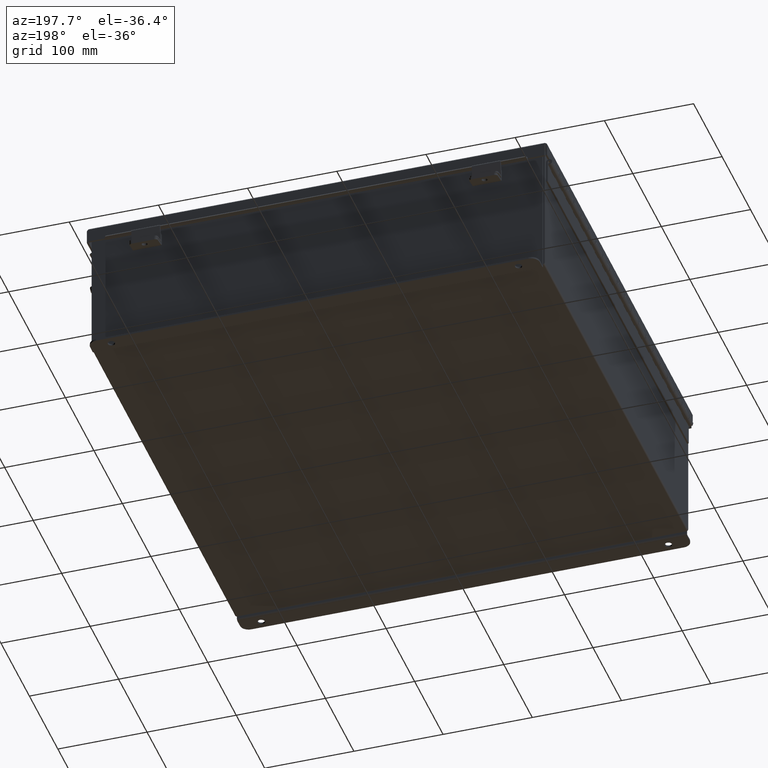
[diagram: clean part render]
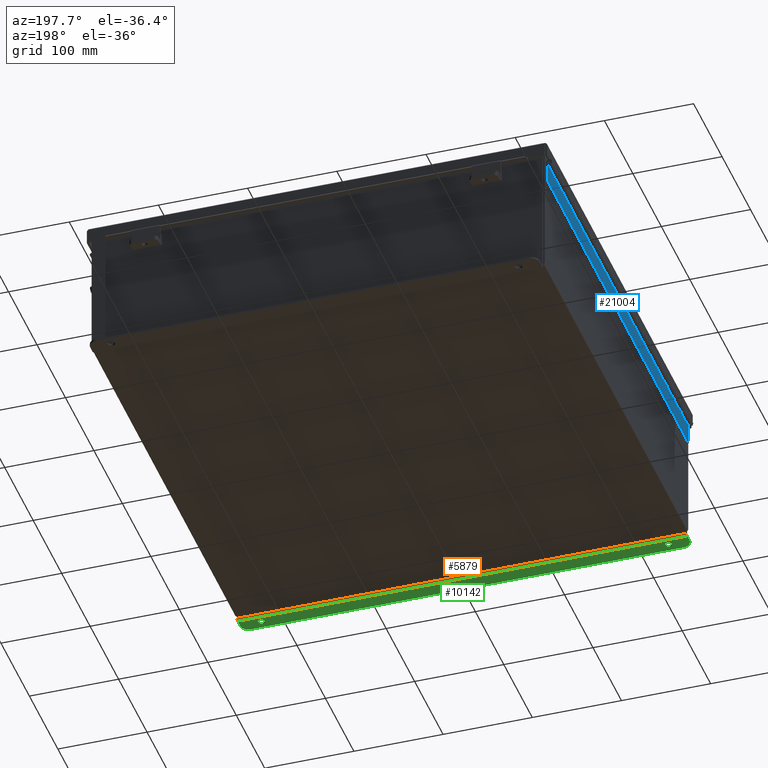
[diagram: same view with three faces highlighted in distinct colors, each labeled with its STEP entity id]
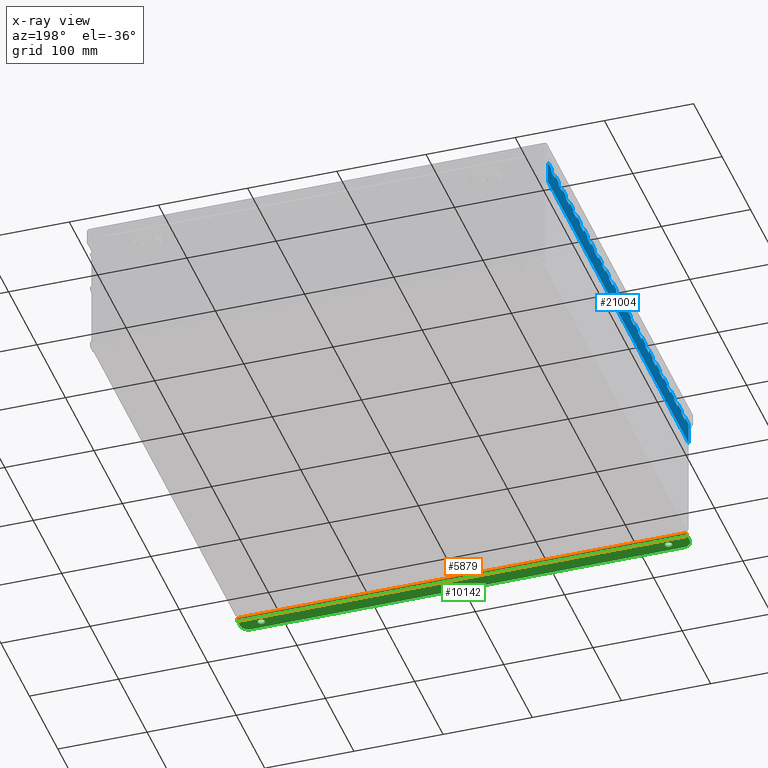
[diagram: x-ray of the same camera — body ghosted, the three highlighted faces saturated]
A machine part, auxiliary view with three faces highlighted in distinct colors.
The next image is the same camera in x-ray (body ghosted, the three faces saturated) — at least one of them is partly hidden behind the body in this view.
Their STEP definitions:

[orange] entity #5879 — the highlighted cylindrical surface (edge-blend (fillet) strip) has radius 2.2276 mm, axis along (1, 0, -0).
#213 = CARTESIAN_POINT ( 'NONE',  ( 9.925300000000000000, 0.01300000000000229300, -3.187000000000000300 ) ) ;
#2634 = ORIENTED_EDGE ( 'NONE', *, *, #8103, .T. ) ;
#3123 = DIRECTION ( 'NONE',  ( 1.000000000000000000, 4.910036603141682400E-031, -0.0000000000000000000 ) ) ;
#3310 = ORIENTED_EDGE ( 'NONE', *, *, #15909, .F. ) ;
#4851 = ORIENTED_EDGE ( 'NONE', *, *, #6555, .F. ) ;
#5260 = EDGE_CURVE ( 'NONE', #12643, #5769, #14905, .T. ) ;
#5634 = VECTOR ( 'NONE', #19349, 39.37007874015748100 ) ;
#5769 = VERTEX_POINT ( 'NONE', #17880 ) ;
#5879 = ADVANCED_FACE ( 'NONE', ( #11672 ), #5997, .T. ) ;
#5997 = CYLINDRICAL_SURFACE ( 'NONE', #17152, 0.08770000000000026400 ) ;
#6555 = EDGE_CURVE ( 'NONE', #12046, #21631, #8392, .T. ) ;
#8103 = EDGE_CURVE ( 'NONE', #12046, #5769, #14825, .T. ) ;
#8392 = CIRCLE ( 'NONE', #18602, 0.08770000000000026400 ) ;
#8696 = ORIENTED_EDGE ( 'NONE', *, *, #5260, .F. ) ;
#8721 = AXIS2_PLACEMENT_3D ( 'NONE', #9966, #9895, #9876 ) ;
#8873 = DIRECTION ( 'NONE',  ( 0.0000000000000000000, 0.0000000000000000000, 1.000000000000000000 ) ) ;
#8974 = DIRECTION ( 'NONE',  ( -1.000000000000000000, -4.910036603141682400E-031, 0.0000000000000000000 ) ) ;
#9023 = CARTESIAN_POINT ( 'NONE',  ( -9.925299999999992900, 0.01299999999999792100, -3.099300000000004400 ) ) ;
#9876 = DIRECTION ( 'NONE',  ( 0.0000000000000000000, 0.0000000000000000000, 1.000000000000000000 ) ) ;
#9895 = DIRECTION ( 'NONE',  ( 1.000000000000000000, 4.910036603141682400E-031, -0.0000000000000000000 ) ) ;
#9966 = CARTESIAN_POINT ( 'NONE',  ( 9.925300000000000000, 0.01300000000000010700, -3.099299999999999900 ) ) ;
#11026 = VECTOR ( 'NONE', #3123, 39.37007874015748100 ) ;
#11672 = FACE_OUTER_BOUND ( 'NONE', #13174, .T. ) ;
#12046 = VERTEX_POINT ( 'NONE', #21501 ) ;
#12643 = VERTEX_POINT ( 'NONE', #14771 ) ;
#13174 = EDGE_LOOP ( 'NONE', ( #3310, #4851, #2634, #8696 ) ) ;
#14245 = DIRECTION ( 'NONE',  ( -1.000000000000000000, -4.910036603141682400E-031, 0.0000000000000000000 ) ) ;
#14344 = CARTESIAN_POINT ( 'NONE',  ( -9.925299999999996500, 0.01299999999999792100, -3.099300000000004400 ) ) ;
#14619 = DIRECTION ( 'NONE',  ( 0.0000000000000000000, -3.699053013085864000E-015, -1.000000000000000000 ) ) ;
#14771 = CARTESIAN_POINT ( 'NONE',  ( 9.925300000000000000, -0.07470000000000015500, -3.099300000000004400 ) ) ;
#14825 = LINE ( 'NONE', #213, #5634 ) ;
#14905 = CIRCLE ( 'NONE', #8721, 0.08770000000000026400 ) ;
#15627 = LINE ( 'NONE', #20462, #11026 ) ;
#15909 = EDGE_CURVE ( 'NONE', #21631, #12643, #15627, .T. ) ;
#17152 = AXIS2_PLACEMENT_3D ( 'NONE', #14344, #14245, #14619 ) ;
#17880 = CARTESIAN_POINT ( 'NONE',  ( 9.925300000000000000, 0.01300000000000010700, -3.187000000000000300 ) ) ;
#18602 = AXIS2_PLACEMENT_3D ( 'NONE', #9023, #8974, #8873 ) ;
#19349 = DIRECTION ( 'NONE',  ( 1.000000000000000000, 4.910036603141682400E-031, -0.0000000000000000000 ) ) ;
#20462 = CARTESIAN_POINT ( 'NONE',  ( -9.925299999999996500, -0.07470000000000015500, -3.099299999999999900 ) ) ;
#21321 = CARTESIAN_POINT ( 'NONE',  ( -9.925299999999992900, -0.07470000000000015500, -3.099299999999999900 ) ) ;
#21501 = CARTESIAN_POINT ( 'NONE',  ( -9.925299999999992900, 0.01300000000000010700, -3.187000000000004700 ) ) ;
#21631 = VERTEX_POINT ( 'NONE', #21321 ) ;

[blue] entity #21004 — the highlighted planar face has unit normal (1, -0, 0).
#48 = FACE_OUTER_BOUND ( 'NONE', #6630, .T. ) ;
#122 = VECTOR ( 'NONE', #18456, 39.37007874015748100 ) ;
#148 = ORIENTED_EDGE ( 'NONE', *, *, #11916, .T. ) ;
#161 = ORIENTED_EDGE ( 'NONE', *, *, #19414, .T. ) ;
#206 = LINE ( 'NONE', #3441, #8852 ) ;
#225 = VERTEX_POINT ( 'NONE', #7599 ) ;
#256 = VECTOR ( 'NONE', #19536, 39.37007874015748100 ) ;
#259 = CARTESIAN_POINT ( 'NONE',  ( 0.2730000000000000200, 2.500000000000000000, 0.0000000000000000000 ) ) ;
#295 = VECTOR ( 'NONE', #6753, 39.37007874015748100 ) ;
#382 = ORIENTED_EDGE ( 'NONE', *, *, #10281, .F. ) ;
#389 = CARTESIAN_POINT ( 'NONE',  ( 0.1365000000000000100, 0.0000000000000000000, -1.707404996040164500E-017 ) ) ;
#408 = LINE ( 'NONE', #14413, #18246 ) ;
#410 = ORIENTED_EDGE ( 'NONE', *, *, #1514, .F. ) ;
#466 = VERTEX_POINT ( 'NONE', #5319 ) ;
#469 = PLANE ( 'NONE',  #19924 ) ;
#672 = VERTEX_POINT ( 'NONE', #14514 ) ;
#738 = VERTEX_POINT ( 'NONE', #16490 ) ;
#743 = DIRECTION ( 'NONE',  ( -1.000000000000000000, 8.005415366049124900E-015, 0.0000000000000000000 ) ) ;
#746 = CARTESIAN_POINT ( 'NONE',  ( 0.1365000000000000100, 12.50000000000000000, -1.707404996040164500E-017 ) ) ;
#748 = VERTEX_POINT ( 'NONE', #20798 ) ;
#789 = CARTESIAN_POINT ( 'NONE',  ( 1.521028919549333600E-013, 2.999999999999999600, 0.0000000000000000000 ) ) ;
#896 = DIRECTION ( 'NONE',  ( 0.0000000000000000000, 1.000000000000000000, 0.0000000000000000000 ) ) ;
#919 = ORIENTED_EDGE ( 'NONE', *, *, #3133, .F. ) ;
#928 = VECTOR ( 'NONE', #10028, 39.37007874015748100 ) ;
#1097 = CARTESIAN_POINT ( 'NONE',  ( 0.1365000000000000100, 10.50000000000000000, -1.707404996040164500E-017 ) ) ;
#1104 = EDGE_CURVE ( 'NONE', #18855, #16125, #5608, .T. ) ;
#1180 = VECTOR ( 'NONE', #19116, 39.37007874015748100 ) ;
#1211 = VERTEX_POINT ( 'NONE', #12882 ) ;
#1213 = VECTOR ( 'NONE', #13768, 39.37007874015748100 ) ;
#1269 = LINE ( 'NONE', #13953, #18556 ) ;
#1310 = EDGE_CURVE ( 'NONE', #9901, #1211, #1269, .T. ) ;
#1322 = EDGE_CURVE ( 'NONE', #17233, #748, #13959, .T. ) ;
#1393 = DIRECTION ( 'NONE',  ( -1.000000000000000000, 8.005415366049124900E-015, 0.0000000000000000000 ) ) ;
#1399 = LINE ( 'NONE', #20352, #14098 ) ;
#1445 = LINE ( 'NONE', #4165, #11199 ) ;
#1450 = VERTEX_POINT ( 'NONE', #20250 ) ;
#1503 = ORIENTED_EDGE ( 'NONE', *, *, #21310, .F. ) ;
#1514 = EDGE_CURVE ( 'NONE', #8196, #17977, #18822, .T. ) ;
#1556 = LINE ( 'NONE', #9575, #10214 ) ;
#1558 = DIRECTION ( 'NONE',  ( -1.000000000000000000, 8.005415366049124900E-015, 0.0000000000000000000 ) ) ;
#1567 = DIRECTION ( 'NONE',  ( -1.000000000000000000, 0.0000000000000000000, 0.0000000000000000000 ) ) ;
#1612 = LINE ( 'NONE', #10437, #19459 ) ;
#1637 = VECTOR ( 'NONE', #10512, 39.37007874015748100 ) ;
#1711 = LINE ( 'NONE', #16788, #1180 ) ;
#1739 = ORIENTED_EDGE ( 'NONE', *, *, #5486, .F. ) ;
#1784 = ORIENTED_EDGE ( 'NONE', *, *, #11775, .F. ) ;
#1794 = CARTESIAN_POINT ( 'NONE',  ( 0.0000000000000000000, 17.50000000000000000, 0.0000000000000000000 ) ) ;
#1828 = CARTESIAN_POINT ( 'NONE',  ( 0.1365000000000000100, 13.50000000000000000, -1.707404996040164500E-017 ) ) ;
#1850 = EDGE_CURVE ( 'NONE', #11419, #6673, #21532, .T. ) ;
#1952 = CARTESIAN_POINT ( 'NONE',  ( 0.1365000000000000100, 6.500000000000000900, -1.707404996040164500E-017 ) ) ;
#1959 = ORIENTED_EDGE ( 'NONE', *, *, #18129, .F. ) ;
#1998 = CARTESIAN_POINT ( 'NONE',  ( 0.0000000000000000000, 18.50000000000000000, 0.0000000000000000000 ) ) ;
#2000 = ORIENTED_EDGE ( 'NONE', *, *, #11355, .T. ) ;
#2134 = ORIENTED_EDGE ( 'NONE', *, *, #8514, .F. ) ;
#2148 = CARTESIAN_POINT ( 'NONE',  ( 0.0000000000000000000, 7.500000000000000000, 0.0000000000000000000 ) ) ;
#2210 = DIRECTION ( 'NONE',  ( -1.000000000000000000, 0.0000000000000000000, -0.0000000000000000000 ) ) ;
#2309 = DIRECTION ( 'NONE',  ( 0.0000000000000000000, 1.000000000000000000, 0.0000000000000000000 ) ) ;
#2318 = EDGE_CURVE ( 'NONE', #15636, #17245, #9080, .T. ) ;
#2347 = CARTESIAN_POINT ( 'NONE',  ( 0.2730000000000000200, 3.499999999999999100, 0.0000000000000000000 ) ) ;
#2403 = EDGE_CURVE ( 'NONE', #3264, #6673, #12078, .T. ) ;
#2408 = ORIENTED_EDGE ( 'NONE', *, *, #20960, .T. ) ;
#2453 = EDGE_CURVE ( 'NONE', #8289, #8196, #19624, .T. ) ;
#2501 = VECTOR ( 'NONE', #10120, 39.37007874015748100 ) ;
#2510 = DIRECTION ( 'NONE',  ( -1.000000000000000000, 8.005415366049124900E-015, 0.0000000000000000000 ) ) ;
#2566 = CARTESIAN_POINT ( 'NONE',  ( 0.1365000000000000100, 0.0000000000000000000, -1.707404996040164500E-017 ) ) ;
#2612 = CARTESIAN_POINT ( 'NONE',  ( 0.2730000000000000200, 10.50000000000000000, 0.0000000000000000000 ) ) ;
#2723 = EDGE_CURVE ( 'NONE', #20427, #17452, #5016, .T. ) ;
#2753 = CARTESIAN_POINT ( 'NONE',  ( 1.521028919549333600E-013, 0.9999999999999992200, 0.0000000000000000000 ) ) ;
#2773 = CARTESIAN_POINT ( 'NONE',  ( 0.1365000000000000100, 1.500000000000000900, -1.707404996040164500E-017 ) ) ;
#2890 = CARTESIAN_POINT ( 'NONE',  ( 1.521028919549333600E-013, 3.999999999999998700, 0.0000000000000000000 ) ) ;
#2985 = DIRECTION ( 'NONE',  ( -1.000000000000000000, 8.005415366049124900E-015, 0.0000000000000000000 ) ) ;
#3031 = ORIENTED_EDGE ( 'NONE', *, *, #21334, .F. ) ;
#3133 = EDGE_CURVE ( 'NONE', #18704, #1450, #20407, .T. ) ;
#3179 = CARTESIAN_POINT ( 'NONE',  ( 0.1365000000000000100, 16.00000000000000000, -1.707404996040164500E-017 ) ) ;
#3210 = VECTOR ( 'NONE', #15255, 39.37007874015748100 ) ;
#3251 = VECTOR ( 'NONE', #6539, 39.37007874015748100 ) ;
#3256 = LINE ( 'NONE', #13755, #20585 ) ;
#3264 = VERTEX_POINT ( 'NONE', #2347 ) ;
#3274 = DIRECTION ( 'NONE',  ( -1.000000000000000000, 0.0000000000000000000, 0.0000000000000000000 ) ) ;
#3283 = CARTESIAN_POINT ( 'NONE',  ( 0.1365000000000000100, 2.000000000000000000, -1.707404996040164500E-017 ) ) ;
#3305 = LINE ( 'NONE', #2566, #21197 ) ;
#3367 = DIRECTION ( 'NONE',  ( -1.000000000000000000, 0.0000000000000000000, 0.0000000000000000000 ) ) ;
#3400 = DIRECTION ( 'NONE',  ( -1.000000000000000000, 0.0000000000000000000, 0.0000000000000000000 ) ) ;
#3441 = CARTESIAN_POINT ( 'NONE',  ( 1.521028919549333600E-013, 13.00000000000000000, 0.0000000000000000000 ) ) ;
#3463 = ORIENTED_EDGE ( 'NONE', *, *, #7820, .F. ) ;
#3488 = LINE ( 'NONE', #9428, #19737 ) ;
#3494 = CARTESIAN_POINT ( 'NONE',  ( 0.2730000000000000200, 9.500000000000000000, 0.0000000000000000000 ) ) ;
#3604 = CARTESIAN_POINT ( 'NONE',  ( 0.2730000000000000200, 17.99999999999999600, 0.0000000000000000000 ) ) ;
#3650 = CARTESIAN_POINT ( 'NONE',  ( 0.2730000000000000200, 0.9999999999999970000, 0.0000000000000000000 ) ) ;
#3769 = EDGE_CURVE ( 'NONE', #15547, #14644, #6325, .T. ) ;
#3781 = CARTESIAN_POINT ( 'NONE',  ( 0.1365000000000000100, 0.0000000000000000000, -1.707404996040164500E-017 ) ) ;
#3792 = LINE ( 'NONE', #7451, #3251 ) ;
#3801 = EDGE_CURVE ( 'NONE', #22258, #7641, #1711, .T. ) ;
#3857 = CARTESIAN_POINT ( 'NONE',  ( 1.521028919549333600E-013, 15.00000000000000000, 0.0000000000000000000 ) ) ;
#3914 = VECTOR ( 'NONE', #9688, 39.37007874015748100 ) ;
#3976 = CARTESIAN_POINT ( 'NONE',  ( 0.2730000000000000200, 17.50000000000000000, 0.0000000000000000000 ) ) ;
#4035 = CARTESIAN_POINT ( 'NONE',  ( 0.2730000000000000200, 16.50000000000000000, 0.0000000000000000000 ) ) ;
#4044 = VECTOR ( 'NONE', #743, 39.37007874015748100 ) ;
#4075 = CARTESIAN_POINT ( 'NONE',  ( 0.2730000000000000200, 5.500000000000000000, 0.0000000000000000000 ) ) ;
#4097 = VERTEX_POINT ( 'NONE', #22363 ) ;
#4100 = VERTEX_POINT ( 'NONE', #17548 ) ;
#4111 = CARTESIAN_POINT ( 'NONE',  ( 1.521028919549333600E-013, 11.00000000000000000, 0.0000000000000000000 ) ) ;
#4115 = VERTEX_POINT ( 'NONE', #3650 ) ;
#4120 = VECTOR ( 'NONE', #7384, 39.37007874015748100 ) ;
#4165 = CARTESIAN_POINT ( 'NONE',  ( 0.0000000000000000000, 5.500000000000000000, 0.0000000000000000000 ) ) ;
#4192 = VERTEX_POINT ( 'NONE', #8426 ) ;
#4285 = EDGE_CURVE ( 'NONE', #3264, #6501, #18995, .T. ) ;
#4329 = CARTESIAN_POINT ( 'NONE',  ( 0.2730000000000000200, 9.999999999999996400, 0.0000000000000000000 ) ) ;
#4353 = ORIENTED_EDGE ( 'NONE', *, *, #18176, .T. ) ;
#4378 = EDGE_CURVE ( 'NONE', #18276, #13481, #16839, .T. ) ;
#4383 = VECTOR ( 'NONE', #20925, 39.37007874015748100 ) ;
#4391 = DIRECTION ( 'NONE',  ( 0.0000000000000000000, 1.000000000000000000, 0.0000000000000000000 ) ) ;
#4415 = LINE ( 'NONE', #15406, #17673 ) ;
#4418 = LINE ( 'NONE', #1794, #9026 ) ;
#4544 = CARTESIAN_POINT ( 'NONE',  ( 0.2730000000000000200, 13.50000000000000000, 0.0000000000000000000 ) ) ;
#4577 = DIRECTION ( 'NONE',  ( 0.0000000000000000000, 1.000000000000000000, 0.0000000000000000000 ) ) ;
#4605 = CARTESIAN_POINT ( 'NONE',  ( 0.2730000000000000200, 16.99999999999999600, 0.0000000000000000000 ) ) ;
#4614 = CARTESIAN_POINT ( 'NONE',  ( 0.0000000000000000000, 0.0000000000000000000, 0.0000000000000000000 ) ) ;
#4641 = CARTESIAN_POINT ( 'NONE',  ( 0.1365000000000000100, 0.0000000000000000000, -1.707404996040164500E-017 ) ) ;
#4661 = CARTESIAN_POINT ( 'NONE',  ( 1.521028919549333600E-013, 2.000000000000000400, 0.0000000000000000000 ) ) ;
#4698 = CARTESIAN_POINT ( 'NONE',  ( 1.521028919549333600E-013, 8.000000000000000000, 0.0000000000000000000 ) ) ;
#4746 = ORIENTED_EDGE ( 'NONE', *, *, #6077, .T. ) ;
#4775 = CARTESIAN_POINT ( 'NONE',  ( 0.0000000000000000000, 1.500000000000000900, 0.0000000000000000000 ) ) ;
#4835 = DIRECTION ( 'NONE',  ( 0.0000000000000000000, 1.000000000000000000, 0.0000000000000000000 ) ) ;
#4877 = CARTESIAN_POINT ( 'NONE',  ( 1.521028919549333600E-013, 5.000000000000000000, 0.0000000000000000000 ) ) ;
#4919 = VECTOR ( 'NONE', #4391, 39.37007874015748100 ) ;
#4927 = CARTESIAN_POINT ( 'NONE',  ( 0.0000000000000000000, 6.500000000000000900, 0.0000000000000000000 ) ) ;
#4958 = DIRECTION ( 'NONE',  ( 0.0000000000000000000, 1.000000000000000000, 0.0000000000000000000 ) ) ;
#5016 = LINE ( 'NONE', #7351, #18238 ) ;
#5039 = CARTESIAN_POINT ( 'NONE',  ( 1.521028919549333600E-013, 11.99999999999999800, 0.0000000000000000000 ) ) ;
#5072 = CARTESIAN_POINT ( 'NONE',  ( 0.1365000000000000100, 0.0000000000000000000, -1.707404996040164500E-017 ) ) ;
#5083 = VERTEX_POINT ( 'NONE', #21385 ) ;
#5102 = EDGE_CURVE ( 'NONE', #8231, #738, #12475, .T. ) ;
#5162 = CARTESIAN_POINT ( 'NONE',  ( 0.0000000000000000000, 14.49999999999999800, 0.0000000000000000000 ) ) ;
#5196 = LINE ( 'NONE', #18061, #5741 ) ;
#5207 = VECTOR ( 'NONE', #18479, 39.37007874015748100 ) ;
#5211 = DIRECTION ( 'NONE',  ( -1.000000000000000000, 8.005415366049124900E-015, 0.0000000000000000000 ) ) ;
#5276 = LINE ( 'NONE', #11270, #19596 ) ;
#5281 = VECTOR ( 'NONE', #16670, 39.37007874015748100 ) ;
#5312 = DIRECTION ( 'NONE',  ( 0.0000000000000000000, 1.000000000000000000, 0.0000000000000000000 ) ) ;
#5319 = CARTESIAN_POINT ( 'NONE',  ( 0.2730000000000000200, 2.999999999999997300, 0.0000000000000000000 ) ) ;
#5447 = CARTESIAN_POINT ( 'NONE',  ( 0.1365000000000000100, 3.499999999999999100, -1.707404996040164500E-017 ) ) ;
#5486 = EDGE_CURVE ( 'NONE', #8181, #17233, #14113, .T. ) ;
#5499 = CARTESIAN_POINT ( 'NONE',  ( 0.2730000000000000200, -2.999999999999999600, 0.0000000000000000000 ) ) ;
#5538 = LINE ( 'NONE', #15536, #6073 ) ;
#5608 = LINE ( 'NONE', #9028, #14239 ) ;
#5635 = CARTESIAN_POINT ( 'NONE',  ( 1.136499999999999800, 19.50000000000000000, 0.0000000000000000000 ) ) ;
#5718 = CARTESIAN_POINT ( 'NONE',  ( 0.1365000000000000100, 7.999999999999999100, -1.707404996040164500E-017 ) ) ;
#5734 = EDGE_CURVE ( 'NONE', #748, #16347, #10878, .T. ) ;
#5741 = VECTOR ( 'NONE', #7740, 39.37007874015748100 ) ;
#5772 = CARTESIAN_POINT ( 'NONE',  ( 0.1365000000000000100, 0.0000000000000000000, -1.707404996040164500E-017 ) ) ;
#5773 = EDGE_CURVE ( 'NONE', #17977, #5083, #13278, .T. ) ;
#5878 = VERTEX_POINT ( 'NONE', #14883 ) ;
#5949 = LINE ( 'NONE', #17442, #10552 ) ;
#6029 = ORIENTED_EDGE ( 'NONE', *, *, #9413, .F. ) ;
#6073 = VECTOR ( 'NONE', #3400, 39.37007874015748100 ) ;
#6077 = EDGE_CURVE ( 'NONE', #22137, #225, #3792, .T. ) ;
#6107 = CARTESIAN_POINT ( 'NONE',  ( 0.1365000000000000100, 0.0000000000000000000, -1.707404996040164500E-017 ) ) ;
#6109 = CARTESIAN_POINT ( 'NONE',  ( 0.1365000000000000100, 8.999999999999998200, -1.707404996040164500E-017 ) ) ;
#6115 = LINE ( 'NONE', #389, #14765 ) ;
#6131 = CARTESIAN_POINT ( 'NONE',  ( 0.1365000000000000100, 13.00000000000000000, -1.707404996040164500E-017 ) ) ;
#6136 = CARTESIAN_POINT ( 'NONE',  ( 0.2730000000000000200, -13.00000000000000000, 0.0000000000000000000 ) ) ;
#6221 = VERTEX_POINT ( 'NONE', #15701 ) ;
#6277 = EDGE_CURVE ( 'NONE', #4115, #16794, #9204, .T. ) ;
#6310 = DIRECTION ( 'NONE',  ( 0.0000000000000000000, 1.000000000000000000, 0.0000000000000000000 ) ) ;
#6325 = LINE ( 'NONE', #8311, #19554 ) ;
#6398 = VERTEX_POINT ( 'NONE', #16223 ) ;
#6409 = CARTESIAN_POINT ( 'NONE',  ( 0.2730000000000000200, -11.00000000000000000, 0.0000000000000000000 ) ) ;
#6419 = DIRECTION ( 'NONE',  ( 0.0000000000000000000, 1.000000000000000000, 0.0000000000000000000 ) ) ;
#6477 = CARTESIAN_POINT ( 'NONE',  ( 0.2730000000000000200, 11.50000000000000200, 0.0000000000000000000 ) ) ;
#6501 = VERTEX_POINT ( 'NONE', #12156 ) ;
#6539 = DIRECTION ( 'NONE',  ( -1.000000000000000000, 0.0000000000000000000, 0.0000000000000000000 ) ) ;
#6622 = CARTESIAN_POINT ( 'NONE',  ( 0.2730000000000000200, 4.500000000000000900, 0.0000000000000000000 ) ) ;
#6630 = EDGE_LOOP ( 'NONE', ( #10664, #11583, #4353, #2408, #10082, #3031, #6895, #12874, #11895, #9977, #7706, #1739, #17949, #919, #17572, #14056, #8717, #22015, #8601, #11037, #11658, #10267, #382, #20632, #12055, #14755, #16787, #10125, #11977, #16395, #13712, #12470, #8369, #6642, #12501, #1503, #11465, #13825, #11543, #22265, #10679, #16154, #11766, #13819, #148, #20675, #12852, #13364, #21864, #18313, #410, #17122, #2000, #16050, #14724, #1959, #161, #20466, #6029, #3463, #20156, #11674, #18499, #1784, #9357, #8155, #16123, #18725, #21277, #22128, #13000, #2134, #4746, #19001, #21246, #16628, #10347, #17259, #21710, #10760 ) ) ;
#6631 = DIRECTION ( 'NONE',  ( -1.000000000000000000, 0.0000000000000000000, 0.0000000000000000000 ) ) ;
#6637 = VECTOR ( 'NONE', #19568, 39.37007874015748100 ) ;
#6642 = ORIENTED_EDGE ( 'NONE', *, *, #2723, .F. ) ;
#6673 = VERTEX_POINT ( 'NONE', #5447 ) ;
#6695 = DIRECTION ( 'NONE',  ( -1.000000000000000000, 0.0000000000000000000, 0.0000000000000000000 ) ) ;
#6696 = EDGE_CURVE ( 'NONE', #19521, #7206, #10284, .T. ) ;
#6739 = EDGE_CURVE ( 'NONE', #22258, #16347, #21921, .T. ) ;
#6753 = DIRECTION ( 'NONE',  ( 0.0000000000000000000, 1.000000000000000000, 0.0000000000000000000 ) ) ;
#6849 = DIRECTION ( 'NONE',  ( 0.0000000000000000000, 1.000000000000000000, 0.0000000000000000000 ) ) ;
#6865 = EDGE_CURVE ( 'NONE', #15547, #17169, #5949, .T. ) ;
#6895 = ORIENTED_EDGE ( 'NONE', *, *, #20289, .F. ) ;
#6901 = LINE ( 'NONE', #10798, #20125 ) ;
#7071 = EDGE_CURVE ( 'NONE', #15672, #13481, #1612, .T. ) ;
#7162 = CARTESIAN_POINT ( 'NONE',  ( 0.2730000000000000200, 12.50000000000000000, 0.0000000000000000000 ) ) ;
#7206 = VERTEX_POINT ( 'NONE', #21677 ) ;
#7303 = DIRECTION ( 'NONE',  ( 0.0000000000000000000, 1.000000000000000000, 0.0000000000000000000 ) ) ;
#7304 = LINE ( 'NONE', #4877, #3210 ) ;
#7351 = CARTESIAN_POINT ( 'NONE',  ( 0.1365000000000000100, 0.0000000000000000000, -1.707404996040164500E-017 ) ) ;
#7365 = VERTEX_POINT ( 'NONE', #17048 ) ;
#7384 = DIRECTION ( 'NONE',  ( -1.000000000000000000, 8.005415366049124900E-015, 0.0000000000000000000 ) ) ;
#7451 = CARTESIAN_POINT ( 'NONE',  ( 0.0000000000000000000, 2.500000000000000000, 0.0000000000000000000 ) ) ;
#7597 = VERTEX_POINT ( 'NONE', #11033 ) ;
#7599 = CARTESIAN_POINT ( 'NONE',  ( 0.1365000000000000100, 2.500000000000000000, -1.707404996040164500E-017 ) ) ;
#7619 = VECTOR ( 'NONE', #6310, 39.37007874015748100 ) ;
#7639 = LINE ( 'NONE', #2890, #11703 ) ;
#7641 = VERTEX_POINT ( 'NONE', #10463 ) ;
#7706 = ORIENTED_EDGE ( 'NONE', *, *, #1322, .F. ) ;
#7726 = CARTESIAN_POINT ( 'NONE',  ( 0.1365000000000000100, 0.0000000000000000000, -1.707404996040164500E-017 ) ) ;
#7740 = DIRECTION ( 'NONE',  ( 0.0000000000000000000, 1.000000000000000000, 0.0000000000000000000 ) ) ;
#7801 = CARTESIAN_POINT ( 'NONE',  ( 1.521028919549333600E-013, 7.000000000000000900, 0.0000000000000000000 ) ) ;
#7820 = EDGE_CURVE ( 'NONE', #19152, #15071, #20247, .T. ) ;
#7843 = VERTEX_POINT ( 'NONE', #6109 ) ;
#7851 = LINE ( 'NONE', #4641, #16507 ) ;
#7883 = VERTEX_POINT ( 'NONE', #4329 ) ;
#7916 = LINE ( 'NONE', #10871, #17126 ) ;
#7959 = LINE ( 'NONE', #3857, #16626 ) ;
#7974 = VERTEX_POINT ( 'NONE', #2773 ) ;
#7984 = LINE ( 'NONE', #21797, #3914 ) ;
#8000 = VECTOR ( 'NONE', #6631, 39.37007874015748100 ) ;
#8138 = VECTOR ( 'NONE', #18175, 39.37007874015748100 ) ;
#8155 = ORIENTED_EDGE ( 'NONE', *, *, #1310, .F. ) ;
#8168 = DIRECTION ( 'NONE',  ( -1.000000000000000000, 0.0000000000000000000, 0.0000000000000000000 ) ) ;
#8181 = VERTEX_POINT ( 'NONE', #3976 ) ;
#8194 = LINE ( 'NONE', #22233, #2501 ) ;
#8196 = VERTEX_POINT ( 'NONE', #9129 ) ;
#8209 = CARTESIAN_POINT ( 'NONE',  ( 0.2730000000000000200, 6.999999999999998200, 0.0000000000000000000 ) ) ;
#8231 = VERTEX_POINT ( 'NONE', #11049 ) ;
#8289 = VERTEX_POINT ( 'NONE', #11198 ) ;
#8302 = DIRECTION ( 'NONE',  ( 0.0000000000000000000, 1.000000000000000000, 0.0000000000000000000 ) ) ;
#8311 = CARTESIAN_POINT ( 'NONE',  ( 0.2730000000000000200, -2.000000000000000000, 0.0000000000000000000 ) ) ;
#8369 = ORIENTED_EDGE ( 'NONE', *, *, #9177, .T. ) ;
#8426 = CARTESIAN_POINT ( 'NONE',  ( 0.1365000000000000100, 15.00000000000000000, -1.707404996040164500E-017 ) ) ;
#8458 = VECTOR ( 'NONE', #15782, 39.37007874015748100 ) ;
#8514 = EDGE_CURVE ( 'NONE', #22137, #466, #11297, .T. ) ;
#8570 = VERTEX_POINT ( 'NONE', #3283 ) ;
#8601 = ORIENTED_EDGE ( 'NONE', *, *, #11293, .F. ) ;
#8673 = CARTESIAN_POINT ( 'NONE',  ( 0.1365000000000000100, 16.50000000000000000, -1.707404996040164500E-017 ) ) ;
#8717 = ORIENTED_EDGE ( 'NONE', *, *, #6865, .T. ) ;
#8736 = LINE ( 'NONE', #12523, #4120 ) ;
#8747 = CARTESIAN_POINT ( 'NONE',  ( 0.2730000000000000200, -5.999999999999999100, 0.0000000000000000000 ) ) ;
#8749 = DIRECTION ( 'NONE',  ( 0.0000000000000000000, 1.000000000000000000, 0.0000000000000000000 ) ) ;
#8786 = CARTESIAN_POINT ( 'NONE',  ( 0.2730000000000000200, 4.999999999999998200, 0.0000000000000000000 ) ) ;
#8818 = CARTESIAN_POINT ( 'NONE',  ( 1.521028919549333600E-013, 19.00000000000000000, 0.0000000000000000000 ) ) ;
#8852 = VECTOR ( 'NONE', #5211, 39.37007874015748100 ) ;
#8858 = DIRECTION ( 'NONE',  ( -1.000000000000000000, 8.005415366049124900E-015, 0.0000000000000000000 ) ) ;
#8889 = DIRECTION ( 'NONE',  ( 0.0000000000000000000, 1.000000000000000000, 0.0000000000000000000 ) ) ;
#9026 = VECTOR ( 'NONE', #15644, 39.37007874015748100 ) ;
#9028 = CARTESIAN_POINT ( 'NONE',  ( 0.0000000000000000000, 11.50000000000000200, 0.0000000000000000000 ) ) ;
#9080 = LINE ( 'NONE', #6107, #13131 ) ;
#9081 = VERTEX_POINT ( 'NONE', #4544 ) ;
#9094 = DIRECTION ( 'NONE',  ( -1.000000000000000000, 8.005415366049124900E-015, 0.0000000000000000000 ) ) ;
#9107 = DIRECTION ( 'NONE',  ( -1.000000000000000000, 0.0000000000000000000, 0.0000000000000000000 ) ) ;
#9129 = CARTESIAN_POINT ( 'NONE',  ( 0.2730000000000000200, 7.999999999999997300, 0.0000000000000000000 ) ) ;
#9177 = EDGE_CURVE ( 'NONE', #10176, #17452, #21274, .T. ) ;
#9204 = LINE ( 'NONE', #2753, #4044 ) ;
#9222 = VERTEX_POINT ( 'NONE', #3179 ) ;
#9357 = ORIENTED_EDGE ( 'NONE', *, *, #18363, .T. ) ;
#9405 = CARTESIAN_POINT ( 'NONE',  ( 0.1365000000000000100, 18.50000000000000000, -1.707404996040164500E-017 ) ) ;
#9413 = EDGE_CURVE ( 'NONE', #15071, #15636, #13402, .T. ) ;
#9428 = CARTESIAN_POINT ( 'NONE',  ( 0.1365000000000000100, 0.0000000000000000000, -1.707404996040164500E-017 ) ) ;
#9480 = CARTESIAN_POINT ( 'NONE',  ( 0.1365000000000000100, 17.00000000000000000, -1.707404996040164500E-017 ) ) ;
#9526 = DIRECTION ( 'NONE',  ( 0.0000000000000000000, 1.000000000000000000, 0.0000000000000000000 ) ) ;
#9573 = EDGE_CURVE ( 'NONE', #21901, #16560, #10708, .T. ) ;
#9575 = CARTESIAN_POINT ( 'NONE',  ( 0.2730000000000000200, -9.000000000000000000, 0.0000000000000000000 ) ) ;
#9684 = EDGE_CURVE ( 'NONE', #9222, #17169, #408, .T. ) ;
#9688 = DIRECTION ( 'NONE',  ( 0.0000000000000000000, 1.000000000000000000, 0.0000000000000000000 ) ) ;
#9743 = DIRECTION ( 'NONE',  ( 0.0000000000000000000, 1.000000000000000000, 0.0000000000000000000 ) ) ;
#9817 = LINE ( 'NONE', #10845, #18455 ) ;
#9901 = VERTEX_POINT ( 'NONE', #21898 ) ;
#9977 = ORIENTED_EDGE ( 'NONE', *, *, #5734, .F. ) ;
#10028 = DIRECTION ( 'NONE',  ( 0.0000000000000000000, 1.000000000000000000, 0.0000000000000000000 ) ) ;
#10063 = VERTEX_POINT ( 'NONE', #10316 ) ;
#10082 = ORIENTED_EDGE ( 'NONE', *, *, #18951, .T. ) ;
#10120 = DIRECTION ( 'NONE',  ( 0.0000000000000000000, 1.000000000000000000, 0.0000000000000000000 ) ) ;
#10125 = ORIENTED_EDGE ( 'NONE', *, *, #16950, .F. ) ;
#10134 = VERTEX_POINT ( 'NONE', #8786 ) ;
#10176 = VERTEX_POINT ( 'NONE', #7162 ) ;
#10214 = VECTOR ( 'NONE', #21620, 39.37007874015748100 ) ;
#10267 = ORIENTED_EDGE ( 'NONE', *, *, #21883, .F. ) ;
#10281 = EDGE_CURVE ( 'NONE', #10436, #4192, #7959, .T. ) ;
#10284 = LINE ( 'NONE', #5499, #14329 ) ;
#10316 = CARTESIAN_POINT ( 'NONE',  ( 0.1365000000000000100, 9.500000000000000000, -1.707404996040164500E-017 ) ) ;
#10341 = LINE ( 'NONE', #10775, #18430 ) ;
#10343 = CARTESIAN_POINT ( 'NONE',  ( 0.1365000000000000100, 7.500000000000000000, -1.707404996040164500E-017 ) ) ;
#10347 = ORIENTED_EDGE ( 'NONE', *, *, #10421, .T. ) ;
#10390 = CARTESIAN_POINT ( 'NONE',  ( 0.1365000000000000100, 4.999999999999999100, -1.707404996040164500E-017 ) ) ;
#10408 = LINE ( 'NONE', #4775, #19054 ) ;
#10421 = EDGE_CURVE ( 'NONE', #4100, #7974, #10408, .T. ) ;
#10436 = VERTEX_POINT ( 'NONE', #11833 ) ;
#10437 = CARTESIAN_POINT ( 'NONE',  ( 0.0000000000000000000, 10.50000000000000000, 0.0000000000000000000 ) ) ;
#10463 = CARTESIAN_POINT ( 'NONE',  ( 0.2730000000000000200, 18.99999999999999600, 0.0000000000000000000 ) ) ;
#10512 = DIRECTION ( 'NONE',  ( 0.0000000000000000000, 1.000000000000000000, 0.0000000000000000000 ) ) ;
#10552 = VECTOR ( 'NONE', #17183, 39.37007874015748100 ) ;
#10664 = ORIENTED_EDGE ( 'NONE', *, *, #17720, .T. ) ;
#10679 = ORIENTED_EDGE ( 'NONE', *, *, #7071, .T. ) ;
#10693 = VERTEX_POINT ( 'NONE', #17609 ) ;
#10708 = LINE ( 'NONE', #7801, #11260 ) ;
#10760 = ORIENTED_EDGE ( 'NONE', *, *, #19964, .F. ) ;
#10769 = DIRECTION ( 'NONE',  ( 0.0000000000000000000, 1.000000000000000000, 0.0000000000000000000 ) ) ;
#10775 = CARTESIAN_POINT ( 'NONE',  ( 1.136500000000000100, 0.0000000000000000000, 0.0000000000000000000 ) ) ;
#10798 = CARTESIAN_POINT ( 'NONE',  ( 0.0000000000000000000, 15.50000000000000000, 0.0000000000000000000 ) ) ;
#10845 = CARTESIAN_POINT ( 'NONE',  ( 1.521028919549333600E-013, 14.00000000000000000, 0.0000000000000000000 ) ) ;
#10871 = CARTESIAN_POINT ( 'NONE',  ( 0.2730000000000000200, -8.000000000000000000, 0.0000000000000000000 ) ) ;
#10878 = LINE ( 'NONE', #19390, #17872 ) ;
#10907 = CARTESIAN_POINT ( 'NONE',  ( 0.2730000000000000200, 5.999999999999997300, 0.0000000000000000000 ) ) ;
#10936 = CARTESIAN_POINT ( 'NONE',  ( 0.2730000000000000200, 18.50000000000000000, 0.0000000000000000000 ) ) ;
#10998 = VECTOR ( 'NONE', #8858, 39.37007874015748100 ) ;
#11010 = CARTESIAN_POINT ( 'NONE',  ( 0.2730000000000000200, 13.99999999999999600, 0.0000000000000000000 ) ) ;
#11033 = CARTESIAN_POINT ( 'NONE',  ( 0.1365000000000000100, 0.4999999999999996100, -1.707404996040164500E-017 ) ) ;
#11037 = ORIENTED_EDGE ( 'NONE', *, *, #6696, .F. ) ;
#11049 = CARTESIAN_POINT ( 'NONE',  ( 0.2730000000000000200, 8.500000000000000000, 0.0000000000000000000 ) ) ;
#11166 = VERTEX_POINT ( 'NONE', #10343 ) ;
#11198 = CARTESIAN_POINT ( 'NONE',  ( 0.2730000000000000200, 7.500000000000000000, 0.0000000000000000000 ) ) ;
#11199 = VECTOR ( 'NONE', #21738, 39.37007874015748100 ) ;
#11251 = VERTEX_POINT ( 'NONE', #13957 ) ;
#11260 = VECTOR ( 'NONE', #16420, 39.37007874015748100 ) ;
#11270 = CARTESIAN_POINT ( 'NONE',  ( 0.1365000000000000100, 0.0000000000000000000, -1.707404996040164500E-017 ) ) ;
#11293 = EDGE_CURVE ( 'NONE', #7206, #9222, #17641, .T. ) ;
#11297 = LINE ( 'NONE', #13504, #21036 ) ;
#11355 = EDGE_CURVE ( 'NONE', #8289, #11166, #16576, .T. ) ;
#11419 = VERTEX_POINT ( 'NONE', #21298 ) ;
#11446 = VECTOR ( 'NONE', #9107, 39.37007874015748100 ) ;
#11465 = ORIENTED_EDGE ( 'NONE', *, *, #1104, .T. ) ;
#11518 = LINE ( 'NONE', #13524, #18526 ) ;
#11543 = ORIENTED_EDGE ( 'NONE', *, *, #17422, .F. ) ;
#11583 = ORIENTED_EDGE ( 'NONE', *, *, #17471, .F. ) ;
#11587 = VECTOR ( 'NONE', #6849, 39.37007874015748100 ) ;
#11658 = ORIENTED_EDGE ( 'NONE', *, *, #18553, .T. ) ;
#11674 = ORIENTED_EDGE ( 'NONE', *, *, #16803, .F. ) ;
#11677 = LINE ( 'NONE', #16662, #7619 ) ;
#11703 = VECTOR ( 'NONE', #15033, 39.37007874015748100 ) ;
#11766 = ORIENTED_EDGE ( 'NONE', *, *, #17933, .F. ) ;
#11775 = EDGE_CURVE ( 'NONE', #14736, #10134, #14670, .T. ) ;
#11784 = CARTESIAN_POINT ( 'NONE',  ( 0.1365000000000000100, 0.0000000000000000000, -1.707404996040164500E-017 ) ) ;
#11827 = VERTEX_POINT ( 'NONE', #1828 ) ;
#11833 = CARTESIAN_POINT ( 'NONE',  ( 0.2730000000000000200, 14.99999999999999600, 0.0000000000000000000 ) ) ;
#11895 = ORIENTED_EDGE ( 'NONE', *, *, #6739, .T. ) ;
#11916 = EDGE_CURVE ( 'NONE', #17804, #10063, #13580, .T. ) ;
#11977 = ORIENTED_EDGE ( 'NONE', *, *, #22254, .T. ) ;
#11983 = LINE ( 'NONE', #4927, #21179 ) ;
#12055 = ORIENTED_EDGE ( 'NONE', *, *, #19484, .T. ) ;
#12078 = LINE ( 'NONE', #20476, #20178 ) ;
#12108 = EDGE_CURVE ( 'NONE', #16560, #11166, #3305, .T. ) ;
#12156 = CARTESIAN_POINT ( 'NONE',  ( 0.2730000000000000200, 3.999999999999996900, 0.0000000000000000000 ) ) ;
#12242 = VECTOR ( 'NONE', #9526, 39.37007874015748100 ) ;
#12379 = CARTESIAN_POINT ( 'NONE',  ( 0.1365000000000000100, 11.50000000000000200, -1.707404996040164500E-017 ) ) ;
#12391 = CARTESIAN_POINT ( 'NONE',  ( 1.521028919549333600E-013, 18.00000000000000000, 0.0000000000000000000 ) ) ;
#12470 = ORIENTED_EDGE ( 'NONE', *, *, #13590, .F. ) ;
#12475 = LINE ( 'NONE', #19410, #12999 ) ;
#12501 = ORIENTED_EDGE ( 'NONE', *, *, #20746, .F. ) ;
#12507 = DIRECTION ( 'NONE',  ( -7.004738445292983000E-018, 1.000000000000000000, 0.0000000000000000000 ) ) ;
#12517 = VERTEX_POINT ( 'NONE', #11010 ) ;
#12523 = CARTESIAN_POINT ( 'NONE',  ( 1.521028919549333600E-013, 10.00000000000000000, 0.0000000000000000000 ) ) ;
#12532 = DIRECTION ( 'NONE',  ( -1.000000000000000000, 0.0000000000000000000, 0.0000000000000000000 ) ) ;
#12577 = DIRECTION ( 'NONE',  ( 0.0000000000000000000, 0.0000000000000000000, -1.000000000000000000 ) ) ;
#12589 = EDGE_CURVE ( 'NONE', #4100, #11251, #5196, .T. ) ;
#12685 = EDGE_CURVE ( 'NONE', #7365, #10436, #11677, .T. ) ;
#12695 = VECTOR ( 'NONE', #1567, 39.37007874015748100 ) ;
#12785 = EDGE_CURVE ( 'NONE', #8231, #5083, #1399, .T. ) ;
#12800 = DIRECTION ( 'NONE',  ( 0.0000000000000000000, 1.000000000000000000, 0.0000000000000000000 ) ) ;
#12852 = ORIENTED_EDGE ( 'NONE', *, *, #21352, .F. ) ;
#12874 = ORIENTED_EDGE ( 'NONE', *, *, #3801, .F. ) ;
#12882 = CARTESIAN_POINT ( 'NONE',  ( 0.1365000000000000100, 4.500000000000000900, -1.707404996040164500E-017 ) ) ;
#12999 = VECTOR ( 'NONE', #19636, 39.37007874015748100 ) ;
#13000 = ORIENTED_EDGE ( 'NONE', *, *, #22354, .F. ) ;
#13131 = VECTOR ( 'NONE', #9743, 39.37007874015748100 ) ;
#13169 = CARTESIAN_POINT ( 'NONE',  ( 0.2730000000000000200, -11.99999999999999800, 0.0000000000000000000 ) ) ;
#13253 = CARTESIAN_POINT ( 'NONE',  ( 0.2730000000000000200, -15.00000000000000000, 0.0000000000000000000 ) ) ;
#13278 = LINE ( 'NONE', #18005, #8138 ) ;
#13306 = VERTEX_POINT ( 'NONE', #19874 ) ;
#13323 = DIRECTION ( 'NONE',  ( 0.0000000000000000000, 1.000000000000000000, 0.0000000000000000000 ) ) ;
#13364 = ORIENTED_EDGE ( 'NONE', *, *, #5102, .F. ) ;
#13402 = LINE ( 'NONE', #19214, #10998 ) ;
#13481 = VERTEX_POINT ( 'NONE', #1097 ) ;
#13504 = CARTESIAN_POINT ( 'NONE',  ( 0.2730000000000000200, -16.00000000000000000, 0.0000000000000000000 ) ) ;
#13524 = CARTESIAN_POINT ( 'NONE',  ( 0.1365000000000000100, 0.0000000000000000000, -1.707404996040164500E-017 ) ) ;
#13580 = LINE ( 'NONE', #14229, #16010 ) ;
#13581 = LINE ( 'NONE', #5039, #18160 ) ;
#13590 = EDGE_CURVE ( 'NONE', #10176, #14426, #15439, .T. ) ;
#13599 = DIRECTION ( 'NONE',  ( 0.0000000000000000000, 1.000000000000000000, 0.0000000000000000000 ) ) ;
#13626 = CARTESIAN_POINT ( 'NONE',  ( 0.1365000000000000100, 10.00000000000000000, -1.707404996040164500E-017 ) ) ;
#13639 = DIRECTION ( 'NONE',  ( -1.000000000000000000, -0.0000000000000000000, -0.0000000000000000000 ) ) ;
#13712 = ORIENTED_EDGE ( 'NONE', *, *, #15495, .F. ) ;
#13755 = CARTESIAN_POINT ( 'NONE',  ( 1.521028919549333600E-013, 8.999999999999998200, 0.0000000000000000000 ) ) ;
#13768 = DIRECTION ( 'NONE',  ( -1.000000000000000000, 0.0000000000000000000, 0.0000000000000000000 ) ) ;
#13801 = DIRECTION ( 'NONE',  ( -1.000000000000000000, 0.0000000000000000000, 0.0000000000000000000 ) ) ;
#13819 = ORIENTED_EDGE ( 'NONE', *, *, #15676, .F. ) ;
#13820 = EDGE_CURVE ( 'NONE', #19856, #11827, #3488, .T. ) ;
#13825 = ORIENTED_EDGE ( 'NONE', *, *, #20103, .F. ) ;
#13953 = CARTESIAN_POINT ( 'NONE',  ( 0.1365000000000000100, 0.0000000000000000000, -1.707404996040164500E-017 ) ) ;
#13957 = CARTESIAN_POINT ( 'NONE',  ( 0.2730000000000000200, 1.999999999999998400, 0.0000000000000000000 ) ) ;
#13959 = LINE ( 'NONE', #12391, #17997 ) ;
#14040 = EDGE_CURVE ( 'NONE', #10134, #18373, #7304, .T. ) ;
#14053 = LINE ( 'NONE', #17784, #256 ) ;
#14056 = ORIENTED_EDGE ( 'NONE', *, *, #3769, .F. ) ;
#14098 = VECTOR ( 'NONE', #8168, 39.37007874015748100 ) ;
#14113 = LINE ( 'NONE', #18967, #4919 ) ;
#14147 = LINE ( 'NONE', #13169, #5281 ) ;
#14158 = DIRECTION ( 'NONE',  ( 0.0000000000000000000, 1.000000000000000000, 0.0000000000000000000 ) ) ;
#14224 = VECTOR ( 'NONE', #1393, 39.37007874015748100 ) ;
#14229 = CARTESIAN_POINT ( 'NONE',  ( 0.0000000000000000000, 9.500000000000000000, 0.0000000000000000000 ) ) ;
#14239 = VECTOR ( 'NONE', #13801, 39.37007874015748100 ) ;
#14329 = VECTOR ( 'NONE', #4958, 39.37007874015748100 ) ;
#14384 = VECTOR ( 'NONE', #14158, 39.37007874015748100 ) ;
#14413 = CARTESIAN_POINT ( 'NONE',  ( 0.1365000000000000100, 0.0000000000000000000, -1.707404996040164500E-017 ) ) ;
#14426 = VERTEX_POINT ( 'NONE', #17920 ) ;
#14431 = VECTOR ( 'NONE', #4577, 39.37007874015748100 ) ;
#14514 = CARTESIAN_POINT ( 'NONE',  ( 0.1365000000000000100, 15.50000000000000000, -1.707404996040164500E-017 ) ) ;
#14575 = CARTESIAN_POINT ( 'NONE',  ( 0.1365000000000000100, 5.999999999999998200, -1.707404996040164500E-017 ) ) ;
#14626 = VERTEX_POINT ( 'NONE', #16736 ) ;
#14644 = VERTEX_POINT ( 'NONE', #4605 ) ;
#14670 = LINE ( 'NONE', #22428, #19260 ) ;
#14724 = ORIENTED_EDGE ( 'NONE', *, *, #9573, .F. ) ;
#14736 = VERTEX_POINT ( 'NONE', #6622 ) ;
#14755 = ORIENTED_EDGE ( 'NONE', *, *, #20930, .F. ) ;
#14758 = DIRECTION ( 'NONE',  ( 0.0000000000000000000, 1.000000000000000000, 0.0000000000000000000 ) ) ;
#14765 = VECTOR ( 'NONE', #10769, 39.37007874015748100 ) ;
#14883 = CARTESIAN_POINT ( 'NONE',  ( 0.1365000000000000100, 5.500000000000000000, -1.707404996040164500E-017 ) ) ;
#14916 = LINE ( 'NONE', #20855, #19507 ) ;
#15020 = VECTOR ( 'NONE', #21470, 39.37007874015748100 ) ;
#15033 = DIRECTION ( 'NONE',  ( -1.000000000000000000, 8.005415366049124900E-015, 0.0000000000000000000 ) ) ;
#15071 = VERTEX_POINT ( 'NONE', #10907 ) ;
#15255 = DIRECTION ( 'NONE',  ( -1.000000000000000000, 8.005415366049124900E-015, 0.0000000000000000000 ) ) ;
#15351 = EDGE_CURVE ( 'NONE', #11251, #8570, #21328, .T. ) ;
#15389 = EDGE_CURVE ( 'NONE', #14644, #18704, #20232, .T. ) ;
#15406 = CARTESIAN_POINT ( 'NONE',  ( 0.0000000000000000000, 0.4999999999999996100, 0.0000000000000000000 ) ) ;
#15439 = LINE ( 'NONE', #8747, #1637 ) ;
#15495 = EDGE_CURVE ( 'NONE', #14426, #19856, #206, .T. ) ;
#15518 = VERTEX_POINT ( 'NONE', #17227 ) ;
#15536 = CARTESIAN_POINT ( 'NONE',  ( 0.0000000000000000000, 4.500000000000000900, 0.0000000000000000000 ) ) ;
#15547 = VERTEX_POINT ( 'NONE', #4035 ) ;
#15562 = LINE ( 'NONE', #4111, #15020 ) ;
#15636 = VERTEX_POINT ( 'NONE', #14575 ) ;
#15643 = VECTOR ( 'NONE', #17012, 39.37007874015748100 ) ;
#15644 = DIRECTION ( 'NONE',  ( -1.000000000000000000, 0.0000000000000000000, 0.0000000000000000000 ) ) ;
#15672 = VERTEX_POINT ( 'NONE', #2612 ) ;
#15676 = EDGE_CURVE ( 'NONE', #17804, #7883, #1556, .T. ) ;
#15701 = CARTESIAN_POINT ( 'NONE',  ( 0.2730000000000000200, 10.99999999999999800, 0.0000000000000000000 ) ) ;
#15782 = DIRECTION ( 'NONE',  ( -1.000000000000000000, 8.005415366049124900E-015, 0.0000000000000000000 ) ) ;
#15884 = CARTESIAN_POINT ( 'NONE',  ( 0.1365000000000000100, 19.00000000000000000, -1.707404996040164500E-017 ) ) ;
#15946 = VECTOR ( 'NONE', #2510, 39.37007874015748100 ) ;
#16010 = VECTOR ( 'NONE', #19447, 39.37007874015748100 ) ;
#16050 = ORIENTED_EDGE ( 'NONE', *, *, #12108, .F. ) ;
#16107 = VERTEX_POINT ( 'NONE', #19231 ) ;
#16123 = ORIENTED_EDGE ( 'NONE', *, *, #20600, .F. ) ;
#16125 = VERTEX_POINT ( 'NONE', #12379 ) ;
#16154 = ORIENTED_EDGE ( 'NONE', *, *, #4378, .F. ) ;
#16223 = CARTESIAN_POINT ( 'NONE',  ( 0.2730000000000000200, 0.4999999999999996100, 0.0000000000000000000 ) ) ;
#16347 = VERTEX_POINT ( 'NONE', #9405 ) ;
#16395 = ORIENTED_EDGE ( 'NONE', *, *, #13820, .F. ) ;
#16420 = DIRECTION ( 'NONE',  ( -1.000000000000000000, 8.005415366049124900E-015, 0.0000000000000000000 ) ) ;
#16483 = LINE ( 'NONE', #789, #15946 ) ;
#16490 = CARTESIAN_POINT ( 'NONE',  ( 0.2730000000000000200, 8.999999999999996400, 0.0000000000000000000 ) ) ;
#16507 = VECTOR ( 'NONE', #6419, 39.37007874015748100 ) ;
#16535 = DIRECTION ( 'NONE',  ( -1.000000000000000000, 8.005415366049124900E-015, 0.0000000000000000000 ) ) ;
#16560 = VERTEX_POINT ( 'NONE', #16814 ) ;
#16576 = LINE ( 'NONE', #2148, #11446 ) ;
#16581 = DIRECTION ( 'NONE',  ( -1.000000000000000000, 8.005415366049124900E-015, 0.0000000000000000000 ) ) ;
#16626 = VECTOR ( 'NONE', #16581, 39.37007874015748100 ) ;
#16628 = ORIENTED_EDGE ( 'NONE', *, *, #12589, .F. ) ;
#16662 = CARTESIAN_POINT ( 'NONE',  ( 0.2730000000000000200, -4.000000000000000000, 0.0000000000000000000 ) ) ;
#16670 = DIRECTION ( 'NONE',  ( 0.0000000000000000000, 1.000000000000000000, 0.0000000000000000000 ) ) ;
#16736 = CARTESIAN_POINT ( 'NONE',  ( 0.1365000000000000100, 11.00000000000000000, -1.707404996040164500E-017 ) ) ;
#16787 = ORIENTED_EDGE ( 'NONE', *, *, #19083, .F. ) ;
#16788 = CARTESIAN_POINT ( 'NONE',  ( 0.2730000000000000200, 0.0000000000000000000, 0.0000000000000000000 ) ) ;
#16794 = VERTEX_POINT ( 'NONE', #17620 ) ;
#16803 = EDGE_CURVE ( 'NONE', #18373, #5878, #6115, .T. ) ;
#16814 = CARTESIAN_POINT ( 'NONE',  ( 0.1365000000000000100, 7.000000000000000000, -1.707404996040164500E-017 ) ) ;
#16839 = LINE ( 'NONE', #7726, #12242 ) ;
#16950 = EDGE_CURVE ( 'NONE', #9081, #12517, #7984, .T. ) ;
#16975 = CARTESIAN_POINT ( 'NONE',  ( 0.0000000000000000000, 12.50000000000000000, 0.0000000000000000000 ) ) ;
#17012 = DIRECTION ( 'NONE',  ( -1.000000000000000000, 8.005415366049124900E-015, 0.0000000000000000000 ) ) ;
#17048 = CARTESIAN_POINT ( 'NONE',  ( 0.2730000000000000200, 14.49999999999999800, 0.0000000000000000000 ) ) ;
#17063 = EDGE_CURVE ( 'NONE', #8570, #225, #11518, .T. ) ;
#17082 = LINE ( 'NONE', #5072, #21143 ) ;
#17087 = CARTESIAN_POINT ( 'NONE',  ( 0.2730000000000000200, -7.000000000000000000, 0.0000000000000000000 ) ) ;
#17122 = ORIENTED_EDGE ( 'NONE', *, *, #2453, .F. ) ;
#17126 = VECTOR ( 'NONE', #8889, 39.37007874015748100 ) ;
#17162 = DIRECTION ( 'NONE',  ( 0.0000000000000000000, 1.000000000000000000, 0.0000000000000000000 ) ) ;
#17169 = VERTEX_POINT ( 'NONE', #8673 ) ;
#17183 = DIRECTION ( 'NONE',  ( -1.000000000000000000, 0.0000000000000000000, 0.0000000000000000000 ) ) ;
#17227 = CARTESIAN_POINT ( 'NONE',  ( 0.1365000000000000100, 14.00000000000000000, -1.707404996040164500E-017 ) ) ;
#17233 = VERTEX_POINT ( 'NONE', #3604 ) ;
#17245 = VERTEX_POINT ( 'NONE', #1952 ) ;
#17259 = ORIENTED_EDGE ( 'NONE', *, *, #17676, .F. ) ;
#17341 = VERTEX_POINT ( 'NONE', #19495 ) ;
#17412 = CARTESIAN_POINT ( 'NONE',  ( 0.0000000000000000000, 19.50000000000000000, 0.0000000000000000000 ) ) ;
#17422 = EDGE_CURVE ( 'NONE', #6221, #14626, #15562, .T. ) ;
#17442 = CARTESIAN_POINT ( 'NONE',  ( 0.0000000000000000000, 16.50000000000000000, 0.0000000000000000000 ) ) ;
#17452 = VERTEX_POINT ( 'NONE', #746 ) ;
#17471 = EDGE_CURVE ( 'NONE', #10693, #7597, #5276, .T. ) ;
#17548 = CARTESIAN_POINT ( 'NONE',  ( 0.2730000000000000200, 1.500000000000000900, 0.0000000000000000000 ) ) ;
#17572 = ORIENTED_EDGE ( 'NONE', *, *, #15389, .F. ) ;
#17602 = LINE ( 'NONE', #17087, #295 ) ;
#17609 = CARTESIAN_POINT ( 'NONE',  ( 0.1364999999999999000, 0.0000000000000000000, 0.0000000000000000000 ) ) ;
#17620 = CARTESIAN_POINT ( 'NONE',  ( 0.1365000000000000100, 0.9999999999999986700, -1.707404996040164500E-017 ) ) ;
#17641 = LINE ( 'NONE', #19241, #8458 ) ;
#17673 = VECTOR ( 'NONE', #3274, 39.37007874015748100 ) ;
#17676 = EDGE_CURVE ( 'NONE', #16794, #7974, #19308, .T. ) ;
#17680 = CARTESIAN_POINT ( 'NONE',  ( 0.2730000000000000200, 11.99999999999999800, 0.0000000000000000000 ) ) ;
#17720 = EDGE_CURVE ( 'NONE', #6398, #7597, #4415, .T. ) ;
#17784 = CARTESIAN_POINT ( 'NONE',  ( 0.0000000000000000000, 13.50000000000000000, 0.0000000000000000000 ) ) ;
#17804 = VERTEX_POINT ( 'NONE', #3494 ) ;
#17872 = VECTOR ( 'NONE', #19469, 39.37007874015748100 ) ;
#17920 = CARTESIAN_POINT ( 'NONE',  ( 0.2730000000000000200, 12.99999999999999800, 0.0000000000000000000 ) ) ;
#17933 = EDGE_CURVE ( 'NONE', #7883, #18276, #8736, .T. ) ;
#17946 = LINE ( 'NONE', #4614, #122 ) ;
#17949 = ORIENTED_EDGE ( 'NONE', *, *, #18402, .T. ) ;
#17977 = VERTEX_POINT ( 'NONE', #5718 ) ;
#17997 = VECTOR ( 'NONE', #16535, 39.37007874015748100 ) ;
#18005 = CARTESIAN_POINT ( 'NONE',  ( 0.1365000000000000100, 0.0000000000000000000, -1.707404996040164500E-017 ) ) ;
#18061 = CARTESIAN_POINT ( 'NONE',  ( 0.2730000000000000200, -17.00000000000000000, 0.0000000000000000000 ) ) ;
#18096 = EDGE_CURVE ( 'NONE', #19152, #5878, #1445, .T. ) ;
#18129 = EDGE_CURVE ( 'NONE', #13306, #21901, #14147, .T. ) ;
#18160 = VECTOR ( 'NONE', #1558, 39.37007874015748100 ) ;
#18175 = DIRECTION ( 'NONE',  ( 0.0000000000000000000, 1.000000000000000000, 0.0000000000000000000 ) ) ;
#18176 = EDGE_CURVE ( 'NONE', #10693, #21206, #17946, .T. ) ;
#18238 = VECTOR ( 'NONE', #5312, 39.37007874015748100 ) ;
#18246 = VECTOR ( 'NONE', #2309, 39.37007874015748100 ) ;
#18276 = VERTEX_POINT ( 'NONE', #13626 ) ;
#18313 = ORIENTED_EDGE ( 'NONE', *, *, #5773, .F. ) ;
#18363 = EDGE_CURVE ( 'NONE', #14736, #1211, #5538, .T. ) ;
#18373 = VERTEX_POINT ( 'NONE', #10390 ) ;
#18402 = EDGE_CURVE ( 'NONE', #8181, #1450, #4418, .T. ) ;
#18422 = CARTESIAN_POINT ( 'NONE',  ( 0.2730000000000000200, -18.00000000000000000, 0.0000000000000000000 ) ) ;
#18430 = VECTOR ( 'NONE', #12507, 39.37007874015748100 ) ;
#18455 = VECTOR ( 'NONE', #9094, 39.37007874015748100 ) ;
#18456 = DIRECTION ( 'NONE',  ( 1.000000000000000000, 0.0000000000000000000, 0.0000000000000000000 ) ) ;
#18479 = DIRECTION ( 'NONE',  ( 0.0000000000000000000, 1.000000000000000000, 0.0000000000000000000 ) ) ;
#18499 = ORIENTED_EDGE ( 'NONE', *, *, #14040, .F. ) ;
#18526 = VECTOR ( 'NONE', #4835, 39.37007874015748100 ) ;
#18553 = EDGE_CURVE ( 'NONE', #19521, #672, #6901, .T. ) ;
#18556 = VECTOR ( 'NONE', #12800, 39.37007874015748100 ) ;
#18704 = VERTEX_POINT ( 'NONE', #9480 ) ;
#18725 = ORIENTED_EDGE ( 'NONE', *, *, #4285, .F. ) ;
#18822 = LINE ( 'NONE', #4698, #14224 ) ;
#18855 = VERTEX_POINT ( 'NONE', #6477 ) ;
#18951 = EDGE_CURVE ( 'NONE', #4097, #16107, #19292, .T. ) ;
#18967 = CARTESIAN_POINT ( 'NONE',  ( 0.2730000000000000200, -1.000000000000000000, 0.0000000000000000000 ) ) ;
#18982 = LINE ( 'NONE', #3781, #14384 ) ;
#18994 = DIRECTION ( 'NONE',  ( 0.0000000000000000000, 1.000000000000000000, 0.0000000000000000000 ) ) ;
#18995 = LINE ( 'NONE', #13253, #5207 ) ;
#19001 = ORIENTED_EDGE ( 'NONE', *, *, #17063, .F. ) ;
#19026 = LINE ( 'NONE', #18422, #14431 ) ;
#19054 = VECTOR ( 'NONE', #20353, 39.37007874015748100 ) ;
#19055 = LINE ( 'NONE', #5162, #1213 ) ;
#19065 = CARTESIAN_POINT ( 'NONE',  ( 0.2730000000000000200, 15.50000000000000000, 0.0000000000000000000 ) ) ;
#19083 = EDGE_CURVE ( 'NONE', #12517, #15518, #9817, .T. ) ;
#19086 = VECTOR ( 'NONE', #7303, 39.37007874015748100 ) ;
#19091 = VECTOR ( 'NONE', #13323, 39.37007874015748100 ) ;
#19116 = DIRECTION ( 'NONE',  ( 0.0000000000000000000, 1.000000000000000000, 0.0000000000000000000 ) ) ;
#19152 = VERTEX_POINT ( 'NONE', #4075 ) ;
#19214 = CARTESIAN_POINT ( 'NONE',  ( 1.521028919549333600E-013, 5.999999999999999100, 0.0000000000000000000 ) ) ;
#19231 = CARTESIAN_POINT ( 'NONE',  ( 0.1365000000000000100, 19.50000000000000000, -1.707404996040164500E-017 ) ) ;
#19241 = CARTESIAN_POINT ( 'NONE',  ( 1.521028919549333600E-013, 16.00000000000000000, 0.0000000000000000000 ) ) ;
#19260 = VECTOR ( 'NONE', #18994, 39.37007874015748100 ) ;
#19292 = LINE ( 'NONE', #17412, #20644 ) ;
#19308 = LINE ( 'NONE', #11784, #928 ) ;
#19390 = CARTESIAN_POINT ( 'NONE',  ( 0.1365000000000000100, 0.0000000000000000000, -1.707404996040164500E-017 ) ) ;
#19410 = CARTESIAN_POINT ( 'NONE',  ( 0.2730000000000000200, -10.00000000000000000, 0.0000000000000000000 ) ) ;
#19414 = EDGE_CURVE ( 'NONE', #13306, #17245, #11983, .T. ) ;
#19447 = DIRECTION ( 'NONE',  ( -1.000000000000000000, 0.0000000000000000000, 0.0000000000000000000 ) ) ;
#19459 = VECTOR ( 'NONE', #3367, 39.37007874015748100 ) ;
#19469 = DIRECTION ( 'NONE',  ( 0.0000000000000000000, 1.000000000000000000, 0.0000000000000000000 ) ) ;
#19484 = EDGE_CURVE ( 'NONE', #7365, #17341, #19055, .T. ) ;
#19495 = CARTESIAN_POINT ( 'NONE',  ( 0.1365000000000000100, 14.49999999999999800, -1.707404996040164500E-017 ) ) ;
#19507 = VECTOR ( 'NONE', #8749, 39.37007874015748100 ) ;
#19521 = VERTEX_POINT ( 'NONE', #19065 ) ;
#19536 = DIRECTION ( 'NONE',  ( -1.000000000000000000, 0.0000000000000000000, 0.0000000000000000000 ) ) ;
#19554 = VECTOR ( 'NONE', #13599, 39.37007874015748100 ) ;
#19568 = DIRECTION ( 'NONE',  ( 0.0000000000000000000, 1.000000000000000000, 0.0000000000000000000 ) ) ;
#19596 = VECTOR ( 'NONE', #896, 39.37007874015748100 ) ;
#19624 = LINE ( 'NONE', #6409, #19091 ) ;
#19636 = DIRECTION ( 'NONE',  ( 0.0000000000000000000, 1.000000000000000000, 0.0000000000000000000 ) ) ;
#19652 = VERTEX_POINT ( 'NONE', #15884 ) ;
#19664 = VERTEX_POINT ( 'NONE', #17680 ) ;
#19737 = VECTOR ( 'NONE', #19772, 39.37007874015748100 ) ;
#19772 = DIRECTION ( 'NONE',  ( 0.0000000000000000000, 1.000000000000000000, 0.0000000000000000000 ) ) ;
#19856 = VERTEX_POINT ( 'NONE', #6131 ) ;
#19874 = CARTESIAN_POINT ( 'NONE',  ( 0.2730000000000000200, 6.500000000000000900, 0.0000000000000000000 ) ) ;
#19924 = AXIS2_PLACEMENT_3D ( 'NONE', #5635, #12577, #2210 ) ;
#19964 = EDGE_CURVE ( 'NONE', #6398, #4115, #19026, .T. ) ;
#20045 = CARTESIAN_POINT ( 'NONE',  ( 1.136500000000000100, 0.0000000000000000000, 0.0000000000000000000 ) ) ;
#20103 = EDGE_CURVE ( 'NONE', #14626, #16125, #8194, .T. ) ;
#20125 = VECTOR ( 'NONE', #12532, 39.37007874015748100 ) ;
#20156 = ORIENTED_EDGE ( 'NONE', *, *, #18096, .T. ) ;
#20178 = VECTOR ( 'NONE', #21856, 39.37007874015748100 ) ;
#20232 = LINE ( 'NONE', #22162, #15643 ) ;
#20247 = LINE ( 'NONE', #6136, #11587 ) ;
#20250 = CARTESIAN_POINT ( 'NONE',  ( 0.1365000000000000100, 17.50000000000000000, -1.707404996040164500E-017 ) ) ;
#20289 = EDGE_CURVE ( 'NONE', #7641, #19652, #22283, .T. ) ;
#20317 = EDGE_CURVE ( 'NONE', #15672, #6221, #7916, .T. ) ;
#20352 = CARTESIAN_POINT ( 'NONE',  ( 0.0000000000000000000, 8.500000000000000000, 0.0000000000000000000 ) ) ;
#20353 = DIRECTION ( 'NONE',  ( -1.000000000000000000, 0.0000000000000000000, 0.0000000000000000000 ) ) ;
#20407 = LINE ( 'NONE', #5772, #6637 ) ;
#20427 = VERTEX_POINT ( 'NONE', #21455 ) ;
#20466 = ORIENTED_EDGE ( 'NONE', *, *, #2318, .F. ) ;
#20476 = CARTESIAN_POINT ( 'NONE',  ( 0.0000000000000000000, 3.499999999999999100, 0.0000000000000000000 ) ) ;
#20585 = VECTOR ( 'NONE', #20636, 39.37007874015748100 ) ;
#20600 = EDGE_CURVE ( 'NONE', #6501, #9901, #7639, .T. ) ;
#20632 = ORIENTED_EDGE ( 'NONE', *, *, #12685, .F. ) ;
#20636 = DIRECTION ( 'NONE',  ( -1.000000000000000000, 8.005415366049124900E-015, 0.0000000000000000000 ) ) ;
#20644 = VECTOR ( 'NONE', #13639, 39.37007874015748100 ) ;
#20675 = ORIENTED_EDGE ( 'NONE', *, *, #21445, .F. ) ;
#20746 = EDGE_CURVE ( 'NONE', #19664, #20427, #13581, .T. ) ;
#20771 = VECTOR ( 'NONE', #2985, 39.37007874015748100 ) ;
#20798 = CARTESIAN_POINT ( 'NONE',  ( 0.1365000000000000100, 18.00000000000000000, -1.707404996040164500E-017 ) ) ;
#20855 = CARTESIAN_POINT ( 'NONE',  ( 0.1365000000000000100, 0.0000000000000000000, -1.707404996040164500E-017 ) ) ;
#20925 = DIRECTION ( 'NONE',  ( -1.000000000000000000, 8.005415366049124900E-015, 0.0000000000000000000 ) ) ;
#20930 = EDGE_CURVE ( 'NONE', #15518, #17341, #18982, .T. ) ;
#20960 = EDGE_CURVE ( 'NONE', #21206, #4097, #10341, .T. ) ;
#20991 = CARTESIAN_POINT ( 'NONE',  ( 0.1365000000000000100, 0.0000000000000000000, -1.707404996040164500E-017 ) ) ;
#21004 = ADVANCED_FACE ( 'NONE', ( #48 ), #469, .F. ) ;
#21036 = VECTOR ( 'NONE', #8302, 39.37007874015748100 ) ;
#21143 = VECTOR ( 'NONE', #17162, 39.37007874015748100 ) ;
#21179 = VECTOR ( 'NONE', #6695, 39.37007874015748100 ) ;
#21197 = VECTOR ( 'NONE', #14758, 39.37007874015748100 ) ;
#21206 = VERTEX_POINT ( 'NONE', #20045 ) ;
#21246 = ORIENTED_EDGE ( 'NONE', *, *, #15351, .F. ) ;
#21274 = LINE ( 'NONE', #16975, #8000 ) ;
#21277 = ORIENTED_EDGE ( 'NONE', *, *, #2403, .T. ) ;
#21298 = CARTESIAN_POINT ( 'NONE',  ( 0.1365000000000000100, 2.999999999999999100, -1.707404996040164500E-017 ) ) ;
#21310 = EDGE_CURVE ( 'NONE', #18855, #19664, #17602, .T. ) ;
#21328 = LINE ( 'NONE', #4661, #20771 ) ;
#21334 = EDGE_CURVE ( 'NONE', #19652, #16107, #17082, .T. ) ;
#21352 = EDGE_CURVE ( 'NONE', #738, #7843, #3256, .T. ) ;
#21385 = CARTESIAN_POINT ( 'NONE',  ( 0.1365000000000000100, 8.500000000000000000, -1.707404996040164500E-017 ) ) ;
#21445 = EDGE_CURVE ( 'NONE', #7843, #10063, #14916, .T. ) ;
#21455 = CARTESIAN_POINT ( 'NONE',  ( 0.1365000000000000100, 11.99999999999999800, -1.707404996040164500E-017 ) ) ;
#21470 = DIRECTION ( 'NONE',  ( -1.000000000000000000, 8.005415366049124900E-015, 0.0000000000000000000 ) ) ;
#21532 = LINE ( 'NONE', #20991, #19086 ) ;
#21620 = DIRECTION ( 'NONE',  ( 0.0000000000000000000, 1.000000000000000000, 0.0000000000000000000 ) ) ;
#21677 = CARTESIAN_POINT ( 'NONE',  ( 0.2730000000000000200, 15.99999999999999800, 0.0000000000000000000 ) ) ;
#21710 = ORIENTED_EDGE ( 'NONE', *, *, #6277, .F. ) ;
#21738 = DIRECTION ( 'NONE',  ( -1.000000000000000000, 0.0000000000000000000, 0.0000000000000000000 ) ) ;
#21797 = CARTESIAN_POINT ( 'NONE',  ( 0.2730000000000000200, -5.000000000000000000, 0.0000000000000000000 ) ) ;
#21856 = DIRECTION ( 'NONE',  ( -1.000000000000000000, 0.0000000000000000000, 0.0000000000000000000 ) ) ;
#21864 = ORIENTED_EDGE ( 'NONE', *, *, #12785, .T. ) ;
#21883 = EDGE_CURVE ( 'NONE', #4192, #672, #7851, .T. ) ;
#21898 = CARTESIAN_POINT ( 'NONE',  ( 0.1365000000000000100, 3.999999999999998200, -1.707404996040164500E-017 ) ) ;
#21901 = VERTEX_POINT ( 'NONE', #8209 ) ;
#21921 = LINE ( 'NONE', #1998, #12695 ) ;
#22015 = ORIENTED_EDGE ( 'NONE', *, *, #9684, .F. ) ;
#22128 = ORIENTED_EDGE ( 'NONE', *, *, #1850, .F. ) ;
#22137 = VERTEX_POINT ( 'NONE', #259 ) ;
#22162 = CARTESIAN_POINT ( 'NONE',  ( 1.521028919549333600E-013, 17.00000000000000000, 0.0000000000000000000 ) ) ;
#22233 = CARTESIAN_POINT ( 'NONE',  ( 0.1365000000000000100, 0.0000000000000000000, -1.707404996040164500E-017 ) ) ;
#22254 = EDGE_CURVE ( 'NONE', #9081, #11827, #14053, .T. ) ;
#22258 = VERTEX_POINT ( 'NONE', #10936 ) ;
#22265 = ORIENTED_EDGE ( 'NONE', *, *, #20317, .F. ) ;
#22283 = LINE ( 'NONE', #8818, #4383 ) ;
#22354 = EDGE_CURVE ( 'NONE', #466, #11419, #16483, .T. ) ;
#22363 = CARTESIAN_POINT ( 'NONE',  ( 1.136500000000000100, 19.50000000000000000, 0.0000000000000000000 ) ) ;
#22428 = CARTESIAN_POINT ( 'NONE',  ( 0.2730000000000000200, -14.00000000000000000, 0.0000000000000000000 ) ) ;

[green] entity #10142 — the highlighted planar face has unit normal (0, -0, 1).
#38 = VERTEX_POINT ( 'NONE', #19720 ) ;
#182 = DIRECTION ( 'NONE',  ( 0.0000000000000000000, 3.702694488566362300E-015, 1.000000000000000000 ) ) ;
#213 = CARTESIAN_POINT ( 'NONE',  ( 9.925300000000000000, 0.01300000000000229300, -3.187000000000000300 ) ) ;
#600 = DIRECTION ( 'NONE',  ( 0.0000000000000000000, -3.362274453740631800E-015, -1.000000000000000000 ) ) ;
#734 = CARTESIAN_POINT ( 'NONE',  ( 8.987800000000008900, 0.2068000000000006800, -3.187000000000000700 ) ) ;
#831 = CARTESIAN_POINT ( 'NONE',  ( -2.035385365534024800E-024, 0.7377999999999989000, -3.187000000000002900 ) ) ;
#833 = AXIS2_PLACEMENT_3D ( 'NONE', #19291, #8922, #21054 ) ;
#947 = FACE_BOUND ( 'NONE', #18758, .T. ) ;
#1508 = CARTESIAN_POINT ( 'NONE',  ( -9.925299999999998200, -1.311287036958846300E-014, -3.187000000000000700 ) ) ;
#1940 = AXIS2_PLACEMENT_3D ( 'NONE', #17703, #7368, #19455 ) ;
#2014 = FACE_BOUND ( 'NONE', #12807, .T. ) ;
#2474 = VECTOR ( 'NONE', #2671, 39.37007874015748100 ) ;
#2671 = DIRECTION ( 'NONE',  ( 4.919856193148104900E-031, 1.000000000000000000, -3.702694488566362300E-015 ) ) ;
#2755 = AXIS2_PLACEMENT_3D ( 'NONE', #3042, #15842, #16190 ) ;
#3042 = CARTESIAN_POINT ( 'NONE',  ( 9.550300000000000000, 0.3628000000000008400, -3.187000000000001200 ) ) ;
#3948 = EDGE_CURVE ( 'NONE', #14130, #5517, #16303, .T. ) ;
#4185 = CARTESIAN_POINT ( 'NONE',  ( 8.987800000000000000, 0.5188000000000010400, -3.187000000000001600 ) ) ;
#4926 = VERTEX_POINT ( 'NONE', #14876 ) ;
#5223 = CARTESIAN_POINT ( 'NONE',  ( 8.987800000000000000, 0.3628000000000008400, -3.187000000000001200 ) ) ;
#5395 = EDGE_CURVE ( 'NONE', #12046, #38, #6569, .T. ) ;
#5517 = VERTEX_POINT ( 'NONE', #14832 ) ;
#5547 = ORIENTED_EDGE ( 'NONE', *, *, #13177, .F. ) ;
#5634 = VECTOR ( 'NONE', #19349, 39.37007874015748100 ) ;
#5769 = VERTEX_POINT ( 'NONE', #17880 ) ;
#6569 = LINE ( 'NONE', #1508, #2474 ) ;
#6916 = DIRECTION ( 'NONE',  ( -0.0000000000000000000, -3.702694488566362300E-015, -1.000000000000000000 ) ) ;
#6993 = DIRECTION ( 'NONE',  ( 0.0000000000000000000, 1.000000000000000000, -3.502369222646487000E-015 ) ) ;
#7132 = CIRCLE ( 'NONE', #21280, 0.3750000000000000600 ) ;
#7368 = DIRECTION ( 'NONE',  ( 0.0000000000000000000, -3.362274453740631800E-015, -1.000000000000000000 ) ) ;
#7387 = VERTEX_POINT ( 'NONE', #16147 ) ;
#7478 = EDGE_CURVE ( 'NONE', #5517, #5769, #8352, .T. ) ;
#7887 = ORIENTED_EDGE ( 'NONE', *, *, #12421, .T. ) ;
#8103 = EDGE_CURVE ( 'NONE', #12046, #5769, #14825, .T. ) ;
#8110 = CIRCLE ( 'NONE', #18939, 0.1560000000000001900 ) ;
#8352 = LINE ( 'NONE', #14364, #17016 ) ;
#8922 = DIRECTION ( 'NONE',  ( 0.0000000000000000000, -3.362274453740631800E-015, -1.000000000000000000 ) ) ;
#9640 = ORIENTED_EDGE ( 'NONE', *, *, #11882, .F. ) ;
#9764 = VERTEX_POINT ( 'NONE', #734 ) ;
#10142 = ADVANCED_FACE ( 'NONE', ( #2014, #947, #14737 ), #10547, .F. ) ;
#10230 = EDGE_CURVE ( 'NONE', #20468, #9764, #21777, .T. ) ;
#10246 = ORIENTED_EDGE ( 'NONE', *, *, #3948, .T. ) ;
#10547 = PLANE ( 'NONE',  #16281 ) ;
#10884 = EDGE_CURVE ( 'NONE', #4926, #14130, #20659, .T. ) ;
#10982 = CARTESIAN_POINT ( 'NONE',  ( -8.987799999999994700, 0.3627999999999986800, -3.187000000000001200 ) ) ;
#11109 = ORIENTED_EDGE ( 'NONE', *, *, #8103, .F. ) ;
#11467 = EDGE_LOOP ( 'NONE', ( #12638, #7887, #21661, #10246, #17932, #11109 ) ) ;
#11867 = ORIENTED_EDGE ( 'NONE', *, *, #10230, .F. ) ;
#11876 = AXIS2_PLACEMENT_3D ( 'NONE', #10982, #600, #12683 ) ;
#11882 = EDGE_CURVE ( 'NONE', #7387, #21571, #17101, .T. ) ;
#12046 = VERTEX_POINT ( 'NONE', #21501 ) ;
#12286 = DIRECTION ( 'NONE',  ( -4.919856193148104900E-031, -1.000000000000000000, 3.702694488566362300E-015 ) ) ;
#12421 = EDGE_CURVE ( 'NONE', #38, #4926, #7132, .T. ) ;
#12443 = EDGE_CURVE ( 'NONE', #9764, #20468, #8110, .T. ) ;
#12638 = ORIENTED_EDGE ( 'NONE', *, *, #5395, .T. ) ;
#12683 = DIRECTION ( 'NONE',  ( 0.0000000000000000000, 1.000000000000000000, -3.502369222646487000E-015 ) ) ;
#12807 = EDGE_LOOP ( 'NONE', ( #5547, #9640 ) ) ;
#13177 = EDGE_CURVE ( 'NONE', #21571, #7387, #17325, .T. ) ;
#13938 = CARTESIAN_POINT ( 'NONE',  ( 0.0000000000000000000, -1.092739197465705300E-014, -3.187000000000000300 ) ) ;
#14130 = VERTEX_POINT ( 'NONE', #17206 ) ;
#14219 = DIRECTION ( 'NONE',  ( -4.919856193148104900E-031, -1.000000000000000000, 3.702694488566362300E-015 ) ) ;
#14364 = CARTESIAN_POINT ( 'NONE',  ( 9.925300000000000000, -1.092739197465705300E-014, -3.187000000000000300 ) ) ;
#14668 = DIRECTION ( 'NONE',  ( 1.000000000000000000, 4.910036603141682400E-031, 0.0000000000000000000 ) ) ;
#14737 = FACE_OUTER_BOUND ( 'NONE', #11467, .T. ) ;
#14825 = LINE ( 'NONE', #213, #5634 ) ;
#14832 = CARTESIAN_POINT ( 'NONE',  ( 9.925300000000000000, 0.3628000000000008400, -3.187000000000001200 ) ) ;
#14876 = CARTESIAN_POINT ( 'NONE',  ( -9.550299999999998200, 0.7377999999999989000, -3.187000000000002900 ) ) ;
#15842 = DIRECTION ( 'NONE',  ( -0.0000000000000000000, -3.702694488566362300E-015, -1.000000000000000000 ) ) ;
#16147 = CARTESIAN_POINT ( 'NONE',  ( -8.987799999999985800, 0.2067999999999984900, -3.187000000000000700 ) ) ;
#16190 = DIRECTION ( 'NONE',  ( 0.0000000000000000000, -1.000000000000000000, 4.370956789862820400E-015 ) ) ;
#16281 = AXIS2_PLACEMENT_3D ( 'NONE', #13938, #182, #12286 ) ;
#16303 = CIRCLE ( 'NONE', #2755, 0.3750000000000000600 ) ;
#17016 = VECTOR ( 'NONE', #14219, 39.37007874015748100 ) ;
#17101 = CIRCLE ( 'NONE', #833, 0.1560000000000001900 ) ;
#17206 = CARTESIAN_POINT ( 'NONE',  ( 9.550300000000000000, 0.7378000000000011200, -3.187000000000002900 ) ) ;
#17235 = CARTESIAN_POINT ( 'NONE',  ( -9.550299999999998200, 0.3627999999999986800, -3.187000000000001200 ) ) ;
#17295 = DIRECTION ( 'NONE',  ( 0.0000000000000000000, -3.362274453740631800E-015, -1.000000000000000000 ) ) ;
#17325 = CIRCLE ( 'NONE', #11876, 0.1560000000000001900 ) ;
#17703 = CARTESIAN_POINT ( 'NONE',  ( 8.987800000000000000, 0.3628000000000008400, -3.187000000000001200 ) ) ;
#17880 = CARTESIAN_POINT ( 'NONE',  ( 9.925300000000000000, 0.01300000000000010700, -3.187000000000000300 ) ) ;
#17932 = ORIENTED_EDGE ( 'NONE', *, *, #7478, .T. ) ;
#18758 = EDGE_LOOP ( 'NONE', ( #11867, #19305 ) ) ;
#18939 = AXIS2_PLACEMENT_3D ( 'NONE', #5223, #17295, #6993 ) ;
#18966 = DIRECTION ( 'NONE',  ( 0.0000000000000000000, -1.000000000000000000, 4.370956789862820400E-015 ) ) ;
#19291 = CARTESIAN_POINT ( 'NONE',  ( -8.987799999999994700, 0.3627999999999986800, -3.187000000000001200 ) ) ;
#19305 = ORIENTED_EDGE ( 'NONE', *, *, #12443, .F. ) ;
#19349 = DIRECTION ( 'NONE',  ( 1.000000000000000000, 4.910036603141682400E-031, -0.0000000000000000000 ) ) ;
#19455 = DIRECTION ( 'NONE',  ( 0.0000000000000000000, 1.000000000000000000, -3.502369222646487000E-015 ) ) ;
#19720 = CARTESIAN_POINT ( 'NONE',  ( -9.925299999999998200, 0.3627999999999986800, -3.187000000000001200 ) ) ;
#20112 = VECTOR ( 'NONE', #14668, 39.37007874015748100 ) ;
#20468 = VERTEX_POINT ( 'NONE', #4185 ) ;
#20659 = LINE ( 'NONE', #831, #20112 ) ;
#21054 = DIRECTION ( 'NONE',  ( 0.0000000000000000000, 1.000000000000000000, -3.502369222646487000E-015 ) ) ;
#21173 = CARTESIAN_POINT ( 'NONE',  ( -8.987799999999994700, 0.5187999999999988200, -3.187000000000001600 ) ) ;
#21280 = AXIS2_PLACEMENT_3D ( 'NONE', #17235, #6916, #18966 ) ;
#21501 = CARTESIAN_POINT ( 'NONE',  ( -9.925299999999992900, 0.01300000000000010700, -3.187000000000004700 ) ) ;
#21571 = VERTEX_POINT ( 'NONE', #21173 ) ;
#21661 = ORIENTED_EDGE ( 'NONE', *, *, #10884, .T. ) ;
#21777 = CIRCLE ( 'NONE', #1940, 0.1560000000000001900 ) ;